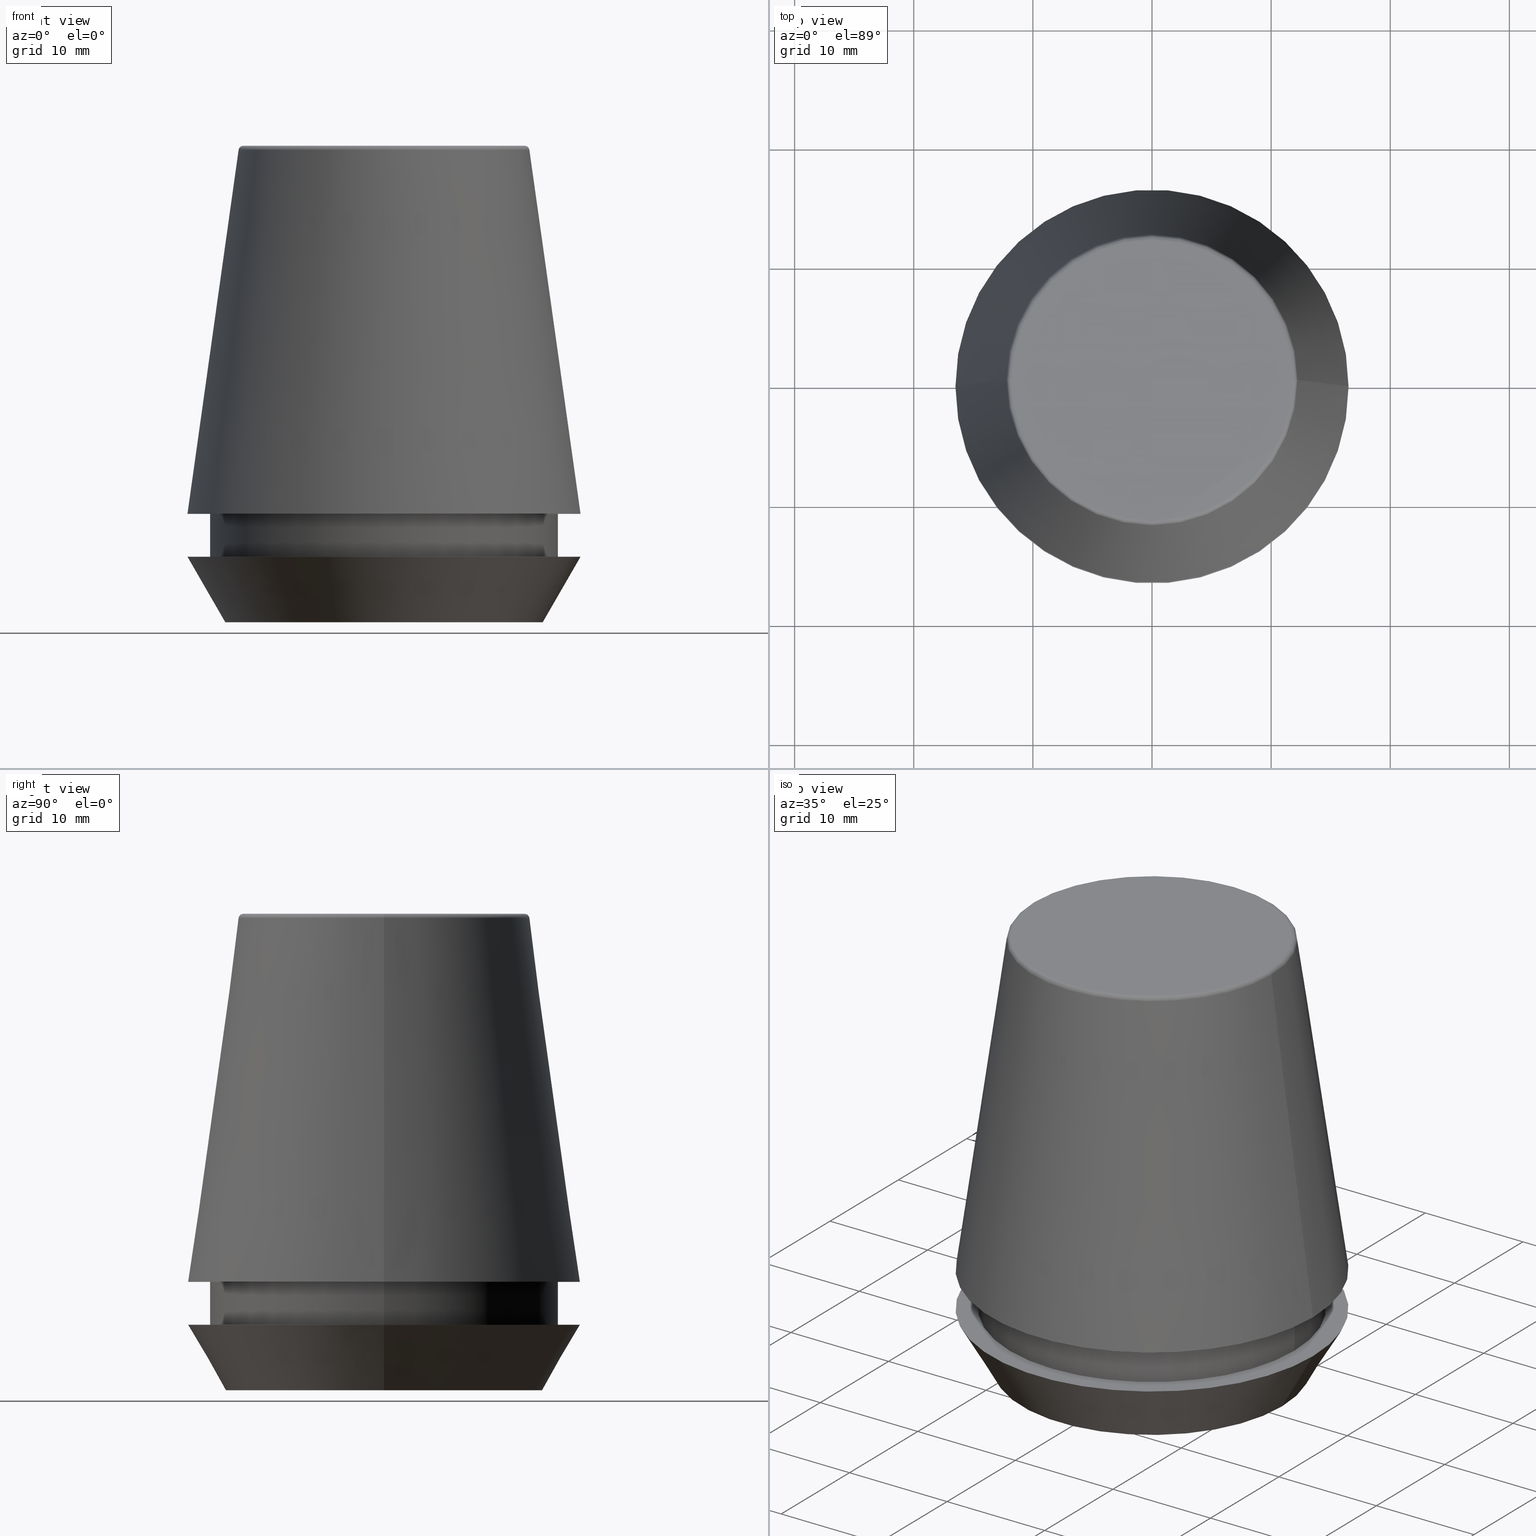
[diagram: canonical four-view strip — front | top / right | iso, engineering-drawing reading convention]
A machine part, canonical four-view strip (front | top / right | iso — engineering-drawing reading convention). The complete STEP part file that produces these views, byte-faithful:
ISO-10303-21;
HEADER;
FILE_DESCRIPTION (( 'STEP AP203' ),
    '1' );
FILE_NAME ('TAP COLLET ER 32G  5.0 X 4.0.STEP',
    '2019-04-09T10:46:45',
    ( '' ),
    ( '' ),
    'SwSTEP 2.0',
    'SolidWorks 2014',
    '' );
FILE_SCHEMA (( 'CONFIG_CONTROL_DESIGN' ));
ENDSEC;

DATA;
#1 = LOCAL_TIME ( 16, 16, 45.00000000000000000, #74 ) ;
#2 = EDGE_CURVE ( 'NONE', #281, #302, #48, .T. ) ;
#3 = CARTESIAN_POINT ( 'NONE',  ( 11.80989888411031400, 0.0000000000000000000, 39.60000000000000100 ) ) ;
#4 = EDGE_CURVE ( 'NONE', #292, #219, #272, .T. ) ;
#5 = VECTOR ( 'NONE', #114, 999.9999999999998900 ) ;
#6 = CARTESIAN_POINT ( 'NONE',  ( 0.0000000000000000000, 0.0000000000000000000, 39.65566924038402900 ) ) ;
#7 = DIRECTION ( 'NONE',  ( 1.000000000000000000, 0.0000000000000000000, 0.0000000000000000000 ) ) ;
#8 = DIRECTION ( 'NONE',  ( 1.000000000000000000, 0.0000000000000000000, 0.0000000000000000000 ) ) ;
#9 = CC_DESIGN_APPROVAL ( #169, ( #26 ) ) ;
#10 = CIRCLE ( 'NONE', #76, 14.60000000000000000 ) ;
#11 = CARTESIAN_POINT ( 'NONE',  ( 0.0000000000000000000, 0.0000000000000000000, 40.00000000000000700 ) ) ;
#12 = CARTESIAN_POINT ( 'NONE',  ( -13.32457351945710200, 1.826228424826902600E-015, 0.0000000000000000000 ) ) ;
#13 = EDGE_LOOP ( 'NONE', ( #22, #373 ) ) ;
#14 = VECTOR ( 'NONE', #386, 1000.000000000000000 ) ;
#15 = ADVANCED_FACE ( 'NONE', ( #122 ), #21, .T. ) ;
#16 = ORIENTED_EDGE ( 'NONE', *, *, #345, .F. ) ;
#17 = CARTESIAN_POINT ( 'NONE',  ( 16.50000000000000000, 0.0000000000000000000, 5.500000000000005300 ) ) ;
#18 = PERSON_AND_ORGANIZATION_ROLE ( 'design_supplier' ) ;
#19 = CARTESIAN_POINT ( 'NONE',  ( 0.0000000000000000000, 0.0000000000000000000, 5.500000000000005300 ) ) ;
#20 = EDGE_CURVE ( 'NONE', #257, #121, #95, .T. ) ;
#21 = CONICAL_SURFACE ( 'NONE', #296, 16.50032537154048700, 0.1396263401595395900 ) ;
#22 = ORIENTED_EDGE ( 'NONE', *, *, #155, .T. ) ;
#23 = DIRECTION ( 'NONE',  ( 1.000000000000000000, 0.0000000000000000000, 0.0000000000000000000 ) ) ;
#24 = FACE_OUTER_BOUND ( 'NONE', #207, .T. ) ;
#25 = LINE ( 'NONE', #88, #266 ) ;
#26 = PRODUCT_DEFINITION_FORMATION_WITH_SPECIFIED_SOURCE ( 'ANY', '', #135, .NOT_KNOWN. ) ;
#27 = DIRECTION ( 'NONE',  ( -0.0000000000000000000, -0.0000000000000000000, 1.000000000000000000 ) ) ;
#28 = CIRCLE ( 'NONE', #231, 12.20600611160694300 ) ;
#29 = EDGE_CURVE ( 'NONE', #351, #325, #173, .T. ) ;
#30 = CIRCLE ( 'NONE', #115, 16.50000000000000000 ) ;
#31 = EDGE_LOOP ( 'NONE', ( #32, #140, #151, #45 ) ) ;
#32 = ORIENTED_EDGE ( 'NONE', *, *, #254, .F. ) ;
#33 = COORDINATED_UNIVERSAL_TIME_OFFSET ( 5, 30, .AHEAD. ) ;
#34 = CLOSED_SHELL ( 'NONE', ( #228, #375, #289, #340, #192, #132, #230, #314, #46, #255, #15, #99 ) ) ;
#35 = CARTESIAN_POINT ( 'NONE',  ( 0.0000000000000000000, 0.0000000000000000000, 39.65566924038402900 ) ) ;
#36 = DIRECTION ( 'NONE',  ( 0.0000000000000000000, -1.000000000000000000, 0.0000000000000000000 ) ) ;
#37 = DIRECTION ( 'NONE',  ( 0.0000000000000000000, -0.0000000000000000000, 1.000000000000000000 ) ) ;
#38 = CONICAL_SURFACE ( 'NONE', #168, 13.32457351945710200, 0.5235987755982927100 ) ;
#39 = DIRECTION ( 'NONE',  ( 1.000000000000000000, 0.0000000000000000000, 0.0000000000000000000 ) ) ;
#40 = CARTESIAN_POINT ( 'NONE',  ( 0.0000000000000000000, 0.0000000000000000000, 5.500000000000005300 ) ) ;
#41 = APPROVAL_PERSON_ORGANIZATION ( #116, #271, #47 ) ;
#42 = ORIENTED_EDGE ( 'NONE', *, *, #104, .T. ) ;
#43 = LOCAL_TIME ( 16, 16, 45.00000000000000000, #127 ) ;
#44 = CC_DESIGN_PERSON_AND_ORGANIZATION_ASSIGNMENT ( #154, #235, ( #229 ) ) ;
#45 = ORIENTED_EDGE ( 'NONE', *, *, #4, .F. ) ;
#46 = ADVANCED_FACE ( 'NONE', ( #336 ), #251, .T. ) ;
#47 = APPROVAL_ROLE ( '' ) ;
#48 = CIRCLE ( 'NONE', #300, 13.32457351945710200 ) ;
#49 = CIRCLE ( 'NONE', #160, 12.20600611160694300 ) ;
#50 = AXIS2_PLACEMENT_3D ( 'NONE', #215, #143, #316 ) ;
#51 = CARTESIAN_POINT ( 'NONE',  ( 0.0000000000000000000, 0.0000000000000000000, 39.60000000000000100 ) ) ;
#52 = AXIS2_PLACEMENT_3D ( 'NONE', #354, #268, #210 ) ;
#53 = CARTESIAN_POINT ( 'NONE',  ( 0.0000000000000000000, 0.0000000000000000000, 5.500000000000005300 ) ) ;
#54 = ORIENTED_EDGE ( 'NONE', *, *, #155, .F. ) ;
#55 = AXIS2_PLACEMENT_3D ( 'NONE', #371, #59, #70 ) ;
#56 = CC_DESIGN_DATE_AND_TIME_ASSIGNMENT ( #277, #198, ( #287 ) ) ;
#57 = ORIENTED_EDGE ( 'NONE', *, *, #225, .F. ) ;
#58 =( NAMED_UNIT ( * ) PLANE_ANGLE_UNIT ( ) SI_UNIT ( $, .RADIAN. ) );
#59 = DIRECTION ( 'NONE',  ( 0.0000000000000000000, 0.0000000000000000000, -1.000000000000000000 ) ) ;
#60 = APPROVAL_DATE_TIME ( #136, #169 ) ;
#61 = AXIS2_PLACEMENT_3D ( 'NONE', #356, #328, #85 ) ;
#62 = CARTESIAN_POINT ( 'NONE',  ( 0.0000000000000000000, 0.0000000000000000000, 9.099999999999997900 ) ) ;
#63 = EDGE_LOOP ( 'NONE', ( #313, #117 ) ) ;
#64 =( GEOMETRIC_REPRESENTATION_CONTEXT ( 3 ) GLOBAL_UNCERTAINTY_ASSIGNED_CONTEXT ( ( #270 ) ) GLOBAL_UNIT_ASSIGNED_CONTEXT ( ( #187, #58, #158 ) ) REPRESENTATION_CONTEXT ( 'NONE', 'WORKASPACE' ) );
#65 = DIRECTION ( 'NONE',  ( 1.000000000000000000, 0.0000000000000000000, 0.0000000000000000000 ) ) ;
#66 = CARTESIAN_POINT ( 'NONE',  ( 0.0000000000000000000, 0.0000000000000000000, 0.0000000000000000000 ) ) ;
#67 = ORIENTED_EDGE ( 'NONE', *, *, #383, .F. ) ;
#68 = APPROVAL_PERSON_ORGANIZATION ( #145, #169, #258 ) ;
#69 = ADVANCED_BREP_SHAPE_REPRESENTATION ( 'TAP COLLET ER 32G  5.0 X 4.0', ( #323, #264 ), #64 ) ;
#70 = DIRECTION ( 'NONE',  ( -1.000000000000000000, 0.0000000000000000000, 0.0000000000000000000 ) ) ;
#71 = EDGE_LOOP ( 'NONE', ( #118, #343, #288, #203 ) ) ;
#72 = CARTESIAN_POINT ( 'NONE',  ( 0.0000000000000000000, 11.80989888411031400, 40.00000000000000700 ) ) ;
#73 = MECHANICAL_CONTEXT ( 'NONE', #150, 'mechanical' ) ;
#74 = COORDINATED_UNIVERSAL_TIME_OFFSET ( 5, 30, .AHEAD. ) ;
#75 = DIRECTION ( 'NONE',  ( 0.0000000000000000000, 0.0000000000000000000, 1.000000000000000000 ) ) ;
#76 = AXIS2_PLACEMENT_3D ( 'NONE', #19, #348, #237 ) ;
#77 = ORIENTED_EDGE ( 'NONE', *, *, #385, .T. ) ;
#78 = LINE ( 'NONE', #146, #5 ) ;
#79 = AXIS2_PLACEMENT_3D ( 'NONE', #53, #110, #360 ) ;
#80 = DIRECTION ( 'NONE',  ( -1.000000000000000000, 0.0000000000000000000, -0.0000000000000000000 ) ) ;
#81 = CARTESIAN_POINT ( 'NONE',  ( -14.60000000000000000, 1.787984326755135800E-015, 101.8074564848000400 ) ) ;
#82 = PLANE ( 'NONE',  #184 ) ;
#83 = CC_DESIGN_PERSON_AND_ORGANIZATION_ASSIGNMENT ( #369, #194, ( #26 ) ) ;
#84 = CIRCLE ( 'NONE', #205, 11.80989888411031400 ) ;
#85 = DIRECTION ( 'NONE',  ( 1.000000000000000000, 0.0000000000000000000, 0.0000000000000000000 ) ) ;
#86 = DIRECTION ( 'NONE',  ( -0.0000000000000000000, -0.0000000000000000000, 1.000000000000000000 ) ) ;
#87 = AXIS2_PLACEMENT_3D ( 'NONE', #112, #253, #159 ) ;
#88 = CARTESIAN_POINT ( 'NONE',  ( 16.50032537154048700, 2.020707065114692300E-015, 9.099999999999997900 ) ) ;
#89 = PLANE ( 'NONE',  #217 ) ;
#90 = FACE_OUTER_BOUND ( 'NONE', #31, .T. ) ;
#91 = EDGE_LOOP ( 'NONE', ( #189, #372 ) ) ;
#92 = DESIGN_CONTEXT ( 'detailed design', #347, 'design' ) ;
#93 = CARTESIAN_POINT ( 'NONE',  ( 0.0000000000000000000, 0.0000000000000000000, 40.00000000000000700 ) ) ;
#94 = CARTESIAN_POINT ( 'NONE',  ( 14.60000000000000000, 0.0000000000000000000, 9.099999999999997900 ) ) ;
#95 = CIRCLE ( 'NONE', #331, 14.60000000000000000 ) ;
#96 = CIRCLE ( 'NONE', #97, 14.60000000000000000 ) ;
#97 = AXIS2_PLACEMENT_3D ( 'NONE', #284, #128, #39 ) ;
#98 = CIRCLE ( 'NONE', #50, 0.4000000000000028000 ) ;
#99 = ADVANCED_FACE ( 'NONE', ( #103 ), #327, .T. ) ;
#100 = APPROVAL_DATE_TIME ( #183, #174 ) ;
#101 = CARTESIAN_POINT ( 'NONE',  ( 0.0000000000000000000, 0.0000000000000000000, 0.0000000000000000000 ) ) ;
#102 = APPROVAL_STATUS ( 'not_yet_approved' ) ;
#103 = FACE_OUTER_BOUND ( 'NONE', #223, .T. ) ;
#104 = EDGE_CURVE ( 'NONE', #302, #281, #260, .T. ) ;
#105 = CIRCLE ( 'NONE', #138, 16.50032537154048700 ) ;
#106 = ORIENTED_EDGE ( 'NONE', *, *, #2, .T. ) ;
#107 = AXIS2_PLACEMENT_3D ( 'NONE', #221, #334, #171 ) ;
#108 = DATE_AND_TIME ( #195, #275 ) ;
#109 = ORIENTED_EDGE ( 'NONE', *, *, #349, .F. ) ;
#110 = DIRECTION ( 'NONE',  ( -0.0000000000000000000, -0.0000000000000000000, 1.000000000000000000 ) ) ;
#111 = APPROVAL_PERSON_ORGANIZATION ( #197, #174, #166 ) ;
#112 = CARTESIAN_POINT ( 'NONE',  ( 0.0000000000000000000, 16.50000000000000000, 5.500000000000002700 ) ) ;
#113 = FACE_OUTER_BOUND ( 'NONE', #177, .T. ) ;
#114 = DIRECTION ( 'NONE',  ( 0.4999999999999947300, 0.0000000000000000000, 0.8660254037844418200 ) ) ;
#115 = AXIS2_PLACEMENT_3D ( 'NONE', #40, #285, #312 ) ;
#116 = PERSON_AND_ORGANIZATION ( #298, #315 ) ;
#117 = ORIENTED_EDGE ( 'NONE', *, *, #304, .T. ) ;
#118 = ORIENTED_EDGE ( 'NONE', *, *, #326, .T. ) ;
#119 = CC_DESIGN_APPROVAL ( #174, ( #287 ) ) ;
#120 = PLANE ( 'NONE',  #144 ) ;
#121 = VERTEX_POINT ( 'NONE', #94 ) ;
#122 = FACE_OUTER_BOUND ( 'NONE', #142, .T. ) ;
#123 = DIRECTION ( 'NONE',  ( 1.000000000000000000, 0.0000000000000000000, 0.0000000000000000000 ) ) ;
#124 = FACE_BOUND ( 'NONE', #91, .T. ) ;
#125 = DIRECTION ( 'NONE',  ( 1.000000000000000000, 0.0000000000000000000, 0.0000000000000000000 ) ) ;
#126 = DIRECTION ( 'NONE',  ( 1.000000000000000000, 0.0000000000000000000, 0.0000000000000000000 ) ) ;
#127 = COORDINATED_UNIVERSAL_TIME_OFFSET ( 5, 30, .AHEAD. ) ;
#128 = DIRECTION ( 'NONE',  ( -0.0000000000000000000, -0.0000000000000000000, 1.000000000000000000 ) ) ;
#129 = AXIS2_PLACEMENT_3D ( 'NONE', #245, #86, #147 ) ;
#130 = CARTESIAN_POINT ( 'NONE',  ( 0.0000000000000000000, 0.0000000000000000000, 0.0000000000000000000 ) ) ;
#131 = ORIENTED_EDGE ( 'NONE', *, *, #367, .T. ) ;
#132 = ADVANCED_FACE ( 'NONE', ( #167 ), #89, .F. ) ;
#133 = EDGE_LOOP ( 'NONE', ( #303, #318, #131, #134 ) ) ;
#134 = ORIENTED_EDGE ( 'NONE', *, *, #20, .F. ) ;
#135 = PRODUCT ( 'TAP COLLET ER 32G  5.0 X 4.0', 'TAP COLLET ER 32G  5.0 X 4.0', '', ( #73 ) ) ;
#136 = DATE_AND_TIME ( #226, #306 ) ;
#137 = CARTESIAN_POINT ( 'NONE',  ( 0.0000000000000000000, 0.0000000000000000000, 9.099999999999997900 ) ) ;
#138 = AXIS2_PLACEMENT_3D ( 'NONE', #137, #185, #8 ) ;
#139 = EDGE_CURVE ( 'NONE', #211, #199, #10, .T. ) ;
#140 = ORIENTED_EDGE ( 'NONE', *, *, #349, .T. ) ;
#141 = ORIENTED_EDGE ( 'NONE', *, *, #364, .F. ) ;
#142 = EDGE_LOOP ( 'NONE', ( #109, #57, #341, #232 ) ) ;
#143 = DIRECTION ( 'NONE',  ( 1.224646799147353200E-016, 1.000000000000000000, 0.0000000000000000000 ) ) ;
#144 = AXIS2_PLACEMENT_3D ( 'NONE', #248, #357, #295 ) ;
#145 = PERSON_AND_ORGANIZATION ( #298, #315 ) ;
#146 = CARTESIAN_POINT ( 'NONE',  ( 13.32457351945710200, 0.0000000000000000000, 0.0000000000000000000 ) ) ;
#147 = DIRECTION ( 'NONE',  ( 1.000000000000000000, 0.0000000000000000000, 0.0000000000000000000 ) ) ;
#148 = AXIS2_PLACEMENT_3D ( 'NONE', #3, #36, #181 ) ;
#149 = CARTESIAN_POINT ( 'NONE',  ( 0.0000000000000000000, 0.0000000000000000000, 101.8074564848000400 ) ) ;
#150 = APPLICATION_CONTEXT ( 'configuration controlled 3d designs of mechanical parts and assemblies' ) ;
#151 = ORIENTED_EDGE ( 'NONE', *, *, #364, .T. ) ;
#152 = ORIENTED_EDGE ( 'NONE', *, *, #139, .F. ) ;
#153 = DIRECTION ( 'NONE',  ( -0.0000000000000000000, -0.0000000000000000000, 1.000000000000000000 ) ) ;
#154 = PERSON_AND_ORGANIZATION ( #298, #315 ) ;
#155 = EDGE_CURVE ( 'NONE', #325, #351, #84, .T. ) ;
#156 = CIRCLE ( 'NONE', #79, 14.60000000000000000 ) ;
#157 = CARTESIAN_POINT ( 'NONE',  ( 0.0000000000000000000, 0.0000000000000000000, 0.0000000000000000000 ) ) ;
#158 =( NAMED_UNIT ( * ) SI_UNIT ( $, .STERADIAN. ) SOLID_ANGLE_UNIT ( ) );
#159 = DIRECTION ( 'NONE',  ( -1.000000000000000000, 0.0000000000000000000, -0.0000000000000000000 ) ) ;
#160 = AXIS2_PLACEMENT_3D ( 'NONE', #35, #363, #220 ) ;
#161 = DIRECTION ( 'NONE',  ( -1.000000000000000000, 0.0000000000000000000, 0.0000000000000000000 ) ) ;
#162 = SHAPE_DEFINITION_REPRESENTATION ( #317, #69 ) ;
#163 = DIRECTION ( 'NONE',  ( -0.1391731009600586900, 0.0000000000000000000, -0.9902680687415712500 ) ) ;
#164 = EDGE_LOOP ( 'NONE', ( #196, #152 ) ) ;
#165 = AXIS2_PLACEMENT_3D ( 'NONE', #51, #27, #7 ) ;
#166 = APPROVAL_ROLE ( '' ) ;
#167 = FACE_OUTER_BOUND ( 'NONE', #319, .T. ) ;
#168 = AXIS2_PLACEMENT_3D ( 'NONE', #157, #309, #65 ) ;
#169 = APPROVAL ( #102, 'UNSPECIFIED' ) ;
#170 = VECTOR ( 'NONE', #387, 1000.000000000000000 ) ;
#171 = DIRECTION ( 'NONE',  ( 1.000000000000000000, 0.0000000000000000000, 0.0000000000000000000 ) ) ;
#172 = CARTESIAN_POINT ( 'NONE',  ( 14.60000000000000000, 0.0000000000000000000, 101.8074564848000400 ) ) ;
#173 = CIRCLE ( 'NONE', #241, 11.80989888411031400 ) ;
#174 = APPROVAL ( #346, 'UNSPECIFIED' ) ;
#175 = CYLINDRICAL_SURFACE ( 'NONE', #107, 14.60000000000000000 ) ;
#176 = CARTESIAN_POINT ( 'NONE',  ( 16.50032537154048700, 2.020707065114692300E-015, 9.099999999999997900 ) ) ;
#177 = EDGE_LOOP ( 'NONE', ( #308, #141 ) ) ;
#178 = CC_DESIGN_DATE_AND_TIME_ASSIGNMENT ( #236, #293, ( #229 ) ) ;
#179 = CIRCLE ( 'NONE', #52, 16.50032537154048700 ) ;
#180 = PERSON_AND_ORGANIZATION_ROLE ( 'design_owner' ) ;
#181 = DIRECTION ( 'NONE',  ( 0.0000000000000000000, 0.0000000000000000000, -1.000000000000000000 ) ) ;
#182 = CARTESIAN_POINT ( 'NONE',  ( -11.80989888411031400, 1.470550059081603400E-015, 40.00000000000000700 ) ) ;
#183 = DATE_AND_TIME ( #267, #342 ) ;
#184 = AXIS2_PLACEMENT_3D ( 'NONE', #72, #259, #80 ) ;
#185 = DIRECTION ( 'NONE',  ( -0.0000000000000000000, -0.0000000000000000000, 1.000000000000000000 ) ) ;
#186 = VECTOR ( 'NONE', #163, 1000.000000000000000 ) ;
#187 =( LENGTH_UNIT ( ) NAMED_UNIT ( * ) SI_UNIT ( .MILLI., .METRE. ) );
#188 = CIRCLE ( 'NONE', #148, 0.4000000000000045200 ) ;
#189 = ORIENTED_EDGE ( 'NONE', *, *, #324, .T. ) ;
#190 = DIRECTION ( 'NONE',  ( -0.0000000000000000000, -0.0000000000000000000, 1.000000000000000000 ) ) ;
#191 = ORIENTED_EDGE ( 'NONE', *, *, #225, .T. ) ;
#192 = ADVANCED_FACE ( 'NONE', ( #322 ), #82, .F. ) ;
#193 = CC_DESIGN_PERSON_AND_ORGANIZATION_ASSIGNMENT ( #206, #180, ( #135 ) ) ;
#194 = PERSON_AND_ORGANIZATION_ROLE ( 'creator' ) ;
#195 = CALENDAR_DATE ( 2019, 9, 4 ) ;
#196 = ORIENTED_EDGE ( 'NONE', *, *, #326, .F. ) ;
#197 = PERSON_AND_ORGANIZATION ( #298, #315 ) ;
#198 = DATE_TIME_ROLE ( 'classification_date' ) ;
#199 = VERTEX_POINT ( 'NONE', #204 ) ;
#200 = DIRECTION ( 'NONE',  ( 1.000000000000000000, 0.0000000000000000000, 0.0000000000000000000 ) ) ;
#201 = LINE ( 'NONE', #278, #282 ) ;
#202 = CC_DESIGN_APPROVAL ( #271, ( #229 ) ) ;
#203 = ORIENTED_EDGE ( 'NONE', *, *, #367, .F. ) ;
#204 = CARTESIAN_POINT ( 'NONE',  ( 14.60000000000000000, 0.0000000000000000000, 5.500000000000005300 ) ) ;
#205 = AXIS2_PLACEMENT_3D ( 'NONE', #93, #153, #252 ) ;
#206 = PERSON_AND_ORGANIZATION ( #298, #315 ) ;
#207 = EDGE_LOOP ( 'NONE', ( #106, #276, #67, #265 ) ) ;
#208 = ORIENTED_EDGE ( 'NONE', *, *, #2, .F. ) ;
#209 = CC_DESIGN_PERSON_AND_ORGANIZATION_ASSIGNMENT ( #214, #378, ( #287 ) ) ;
#210 = DIRECTION ( 'NONE',  ( 1.000000000000000000, 0.0000000000000000000, 0.0000000000000000000 ) ) ;
#211 = VERTEX_POINT ( 'NONE', #359 ) ;
#212 = CARTESIAN_POINT ( 'NONE',  ( 12.20600611160694300, 1.757755848304969800E-015, 39.65566924038402900 ) ) ;
#213 = CARTESIAN_POINT ( 'NONE',  ( -16.50032537154048700, 0.0000000000000000000, 9.099999999999997900 ) ) ;
#214 = PERSON_AND_ORGANIZATION ( #298, #315 ) ;
#215 = CARTESIAN_POINT ( 'NONE',  ( -11.80989888411031400, 1.446295486667959300E-015, 39.60000000000000100 ) ) ;
#216 = DIRECTION ( 'NONE',  ( 1.000000000000000000, 0.0000000000000000000, 0.0000000000000000000 ) ) ;
#217 = AXIS2_PLACEMENT_3D ( 'NONE', #66, #37, #125 ) ;
#218 = ORIENTED_EDGE ( 'NONE', *, *, #29, .F. ) ;
#219 = VERTEX_POINT ( 'NONE', #329 ) ;
#220 = DIRECTION ( 'NONE',  ( 1.000000000000000000, 0.0000000000000000000, 0.0000000000000000000 ) ) ;
#221 = CARTESIAN_POINT ( 'NONE',  ( 0.0000000000000000000, 0.0000000000000000000, 101.8074564848000400 ) ) ;
#222 = ORIENTED_EDGE ( 'NONE', *, *, #280, .T. ) ;
#223 = EDGE_LOOP ( 'NONE', ( #16, #191, #222, #218 ) ) ;
#224 = AXIS2_PLACEMENT_3D ( 'NONE', #149, #190, #126 ) ;
#225 = EDGE_CURVE ( 'NONE', #292, #362, #28, .T. ) ;
#226 = CALENDAR_DATE ( 2019, 9, 4 ) ;
#227 = DIRECTION ( 'NONE',  ( 1.000000000000000000, 0.0000000000000000000, 0.0000000000000000000 ) ) ;
#228 = ADVANCED_FACE ( 'NONE', ( #243 ), #239, .T. ) ;
#229 = PRODUCT_DEFINITION ( 'UNKNOWN', '', #26, #92 ) ;
#230 = ADVANCED_FACE ( 'NONE', ( #355 ), #38, .T. ) ;
#231 = AXIS2_PLACEMENT_3D ( 'NONE', #6, #294, #216 ) ;
#232 = ORIENTED_EDGE ( 'NONE', *, *, #283, .T. ) ;
#233 = SECURITY_CLASSIFICATION_LEVEL ( 'unclassified' ) ;
#234 = ORIENTED_EDGE ( 'NONE', *, *, #104, .F. ) ;
#235 = PERSON_AND_ORGANIZATION_ROLE ( 'creator' ) ;
#236 = DATE_AND_TIME ( #310, #1 ) ;
#237 = DIRECTION ( 'NONE',  ( 1.000000000000000000, 0.0000000000000000000, 0.0000000000000000000 ) ) ;
#238 = AXIS2_PLACEMENT_3D ( 'NONE', #101, #269, #200 ) ;
#239 = TOROIDAL_SURFACE ( 'NONE', #165, 11.80989888411031400, 0.4000000000000026900 ) ;
#240 = CONICAL_SURFACE ( 'NONE', #55, 16.50032537154048700, 0.1396263401595395900 ) ;
#241 = AXIS2_PLACEMENT_3D ( 'NONE', #11, #263, #23 ) ;
#242 = APPROVAL_DATE_TIME ( #108, #271 ) ;
#243 = FACE_OUTER_BOUND ( 'NONE', #366, .T. ) ;
#244 = EDGE_CURVE ( 'NONE', #302, #377, #201, .T. ) ;
#245 = CARTESIAN_POINT ( 'NONE',  ( 0.0000000000000000000, 0.0000000000000000000, 0.0000000000000000000 ) ) ;
#246 = ORIENTED_EDGE ( 'NONE', *, *, #244, .F. ) ;
#247 = CIRCLE ( 'NONE', #61, 16.50000000000000000 ) ;
#248 = CARTESIAN_POINT ( 'NONE',  ( 0.0000000000000000000, 16.50032537154048700, 9.099999999999999600 ) ) ;
#249 = CARTESIAN_POINT ( 'NONE',  ( 0.0000000000000000000, 0.0000000000000000000, 39.60000000000000100 ) ) ;
#250 = DIRECTION ( 'NONE',  ( -0.0000000000000000000, -0.0000000000000000000, 1.000000000000000000 ) ) ;
#251 = CYLINDRICAL_SURFACE ( 'NONE', #224, 14.60000000000000000 ) ;
#252 = DIRECTION ( 'NONE',  ( 1.000000000000000000, 0.0000000000000000000, 0.0000000000000000000 ) ) ;
#253 = DIRECTION ( 'NONE',  ( 0.0000000000000000000, 0.0000000000000000000, -1.000000000000000000 ) ) ;
#254 = EDGE_CURVE ( 'NONE', #362, #292, #49, .T. ) ;
#255 = ADVANCED_FACE ( 'NONE', ( #113, #124 ), #120, .F. ) ;
#256 = LINE ( 'NONE', #81, #14 ) ;
#257 = VERTEX_POINT ( 'NONE', #353 ) ;
#258 = APPROVAL_ROLE ( '' ) ;
#259 = DIRECTION ( 'NONE',  ( 0.0000000000000000000, 0.0000000000000000000, -1.000000000000000000 ) ) ;
#260 = CIRCLE ( 'NONE', #238, 13.32457351945710200 ) ;
#261 = DIRECTION ( 'NONE',  ( -0.0000000000000000000, -0.0000000000000000000, 1.000000000000000000 ) ) ;
#262 = FACE_OUTER_BOUND ( 'NONE', #63, .T. ) ;
#263 = DIRECTION ( 'NONE',  ( -0.0000000000000000000, -0.0000000000000000000, 1.000000000000000000 ) ) ;
#264 = AXIS2_PLACEMENT_3D ( 'NONE', #130, #75, #382 ) ;
#265 = ORIENTED_EDGE ( 'NONE', *, *, #385, .F. ) ;
#266 = VECTOR ( 'NONE', #358, 1000.000000000000000 ) ;
#267 = CALENDAR_DATE ( 2019, 9, 4 ) ;
#268 = DIRECTION ( 'NONE',  ( -0.0000000000000000000, -0.0000000000000000000, 1.000000000000000000 ) ) ;
#269 = DIRECTION ( 'NONE',  ( -0.0000000000000000000, -0.0000000000000000000, 1.000000000000000000 ) ) ;
#270 = UNCERTAINTY_MEASURE_WITH_UNIT (LENGTH_MEASURE( 1.000000000000000100E-005 ), #187, 'distance_accuracy_value', 'NONE');
#271 = APPROVAL ( #320, 'UNSPECIFIED' ) ;
#272 = LINE ( 'NONE', #213, #186 ) ;
#273 = PLANE ( 'NONE',  #87 ) ;
#274 = FACE_OUTER_BOUND ( 'NONE', #71, .T. ) ;
#275 = LOCAL_TIME ( 16, 16, 45.00000000000000000, #350 ) ;
#276 = ORIENTED_EDGE ( 'NONE', *, *, #244, .T. ) ;
#277 = DATE_AND_TIME ( #352, #43 ) ;
#278 = CARTESIAN_POINT ( 'NONE',  ( -13.32457351945710200, 1.631789631060672300E-015, 0.0000000000000000000 ) ) ;
#279 = DIRECTION ( 'NONE',  ( -0.4999999999999947300, 6.123233995736700700E-017, 0.8660254037844418200 ) ) ;
#280 = EDGE_CURVE ( 'NONE', #362, #325, #188, .T. ) ;
#281 = VERTEX_POINT ( 'NONE', #332 ) ;
#282 = VECTOR ( 'NONE', #279, 999.9999999999998900 ) ;
#283 = EDGE_CURVE ( 'NONE', #219, #361, #105, .T. ) ;
#284 = CARTESIAN_POINT ( 'NONE',  ( 0.0000000000000000000, 0.0000000000000000000, 9.099999999999997900 ) ) ;
#285 = DIRECTION ( 'NONE',  ( -0.0000000000000000000, -0.0000000000000000000, 1.000000000000000000 ) ) ;
#286 = VERTEX_POINT ( 'NONE', #17 ) ;
#287 = SECURITY_CLASSIFICATION ( '', '', #233 ) ;
#288 = ORIENTED_EDGE ( 'NONE', *, *, #324, .F. ) ;
#289 = ADVANCED_FACE ( 'NONE', ( #274 ), #175, .T. ) ;
#290 = DIRECTION ( 'NONE',  ( -0.0000000000000000000, -0.0000000000000000000, 1.000000000000000000 ) ) ;
#291 = PRODUCT_RELATED_PRODUCT_CATEGORY ( 'detail', '', ( #135 ) ) ;
#292 = VERTEX_POINT ( 'NONE', #307 ) ;
#293 = DATE_TIME_ROLE ( 'creation_date' ) ;
#294 = DIRECTION ( 'NONE',  ( -0.0000000000000000000, -0.0000000000000000000, 1.000000000000000000 ) ) ;
#295 = DIRECTION ( 'NONE',  ( 1.000000000000000000, 0.0000000000000000000, 0.0000000000000000000 ) ) ;
#296 = AXIS2_PLACEMENT_3D ( 'NONE', #62, #321, #161 ) ;
#297 = PERSON_AND_ORGANIZATION ( #298, #315 ) ;
#298 = PERSON ( 'UNSPECIFIED', 'UNSPECIFIED', 'UNSPECIFIED', ('UNSPECIFIED'), ('UNSPECIFIED'), ('UNSPECIFIED') ) ;
#299 = ORIENTED_EDGE ( 'NONE', *, *, #304, .F. ) ;
#300 = AXIS2_PLACEMENT_3D ( 'NONE', #333, #250, #123 ) ;
#301 = ORIENTED_EDGE ( 'NONE', *, *, #280, .F. ) ;
#302 = VERTEX_POINT ( 'NONE', #12 ) ;
#303 = ORIENTED_EDGE ( 'NONE', *, *, #370, .F. ) ;
#304 = EDGE_CURVE ( 'NONE', #377, #286, #30, .T. ) ;
#305 = CARTESIAN_POINT ( 'NONE',  ( -16.50000000000000000, 2.020667218593133100E-015, 5.500000000000005300 ) ) ;
#306 = LOCAL_TIME ( 16, 16, 45.00000000000000000, #381 ) ;
#307 = CARTESIAN_POINT ( 'NONE',  ( -12.20600611160694300, 0.0000000000000000000, 39.65566924038402900 ) ) ;
#308 = ORIENTED_EDGE ( 'NONE', *, *, #283, .F. ) ;
#309 = DIRECTION ( 'NONE',  ( -0.0000000000000000000, -0.0000000000000000000, 1.000000000000000000 ) ) ;
#310 = CALENDAR_DATE ( 2019, 9, 4 ) ;
#311 = CARTESIAN_POINT ( 'NONE',  ( 11.80989888411031400, 0.0000000000000000000, 40.00000000000000700 ) ) ;
#312 = DIRECTION ( 'NONE',  ( 1.000000000000000000, 0.0000000000000000000, 0.0000000000000000000 ) ) ;
#313 = ORIENTED_EDGE ( 'NONE', *, *, #383, .T. ) ;
#314 = ADVANCED_FACE ( 'NONE', ( #337, #262 ), #273, .F. ) ;
#315 = ORGANIZATION ( 'UNSPECIFIED', 'UNSPECIFIED', '' ) ;
#316 = DIRECTION ( 'NONE',  ( -1.000000000000000000, 1.224646799147352500E-016, 0.0000000000000000000 ) ) ;
#317 = PRODUCT_DEFINITION_SHAPE ( 'NONE', 'NONE',  #229 ) ;
#318 = ORIENTED_EDGE ( 'NONE', *, *, #139, .T. ) ;
#319 = EDGE_LOOP ( 'NONE', ( #208, #234 ) ) ;
#320 = APPROVAL_STATUS ( 'not_yet_approved' ) ;
#321 = DIRECTION ( 'NONE',  ( 0.0000000000000000000, 0.0000000000000000000, -1.000000000000000000 ) ) ;
#322 = FACE_OUTER_BOUND ( 'NONE', #13, .T. ) ;
#323 = MANIFOLD_SOLID_BREP ( 'Revolve1', #34 ) ;
#324 = EDGE_CURVE ( 'NONE', #121, #257, #96, .T. ) ;
#325 = VERTEX_POINT ( 'NONE', #311 ) ;
#326 = EDGE_CURVE ( 'NONE', #199, #211, #156, .T. ) ;
#327 = TOROIDAL_SURFACE ( 'NONE', #335, 11.80989888411031400, 0.4000000000000026900 ) ;
#328 = DIRECTION ( 'NONE',  ( -0.0000000000000000000, -0.0000000000000000000, 1.000000000000000000 ) ) ;
#329 = CARTESIAN_POINT ( 'NONE',  ( -16.50032537154048700, 0.0000000000000000000, 9.099999999999997900 ) ) ;
#330 = CONICAL_SURFACE ( 'NONE', #129, 13.32457351945710200, 0.5235987755982927100 ) ;
#331 = AXIS2_PLACEMENT_3D ( 'NONE', #368, #290, #338 ) ;
#332 = CARTESIAN_POINT ( 'NONE',  ( 13.32457351945710200, 0.0000000000000000000, 0.0000000000000000000 ) ) ;
#333 = CARTESIAN_POINT ( 'NONE',  ( 0.0000000000000000000, 0.0000000000000000000, 0.0000000000000000000 ) ) ;
#334 = DIRECTION ( 'NONE',  ( -0.0000000000000000000, -0.0000000000000000000, 1.000000000000000000 ) ) ;
#335 = AXIS2_PLACEMENT_3D ( 'NONE', #249, #261, #227 ) ;
#336 = FACE_OUTER_BOUND ( 'NONE', #133, .T. ) ;
#337 = FACE_BOUND ( 'NONE', #164, .T. ) ;
#338 = DIRECTION ( 'NONE',  ( 1.000000000000000000, 0.0000000000000000000, 0.0000000000000000000 ) ) ;
#339 = LINE ( 'NONE', #172, #170 ) ;
#340 = ADVANCED_FACE ( 'NONE', ( #24 ), #330, .T. ) ;
#341 = ORIENTED_EDGE ( 'NONE', *, *, #4, .T. ) ;
#342 = LOCAL_TIME ( 16, 16, 45.00000000000000000, #33 ) ;
#343 = ORIENTED_EDGE ( 'NONE', *, *, #370, .T. ) ;
#344 = APPLICATION_PROTOCOL_DEFINITION ( 'international standard', 'config_control_design', 1994, #150 ) ;
#345 = EDGE_CURVE ( 'NONE', #292, #351, #98, .T. ) ;
#346 = APPROVAL_STATUS ( 'not_yet_approved' ) ;
#347 = APPLICATION_CONTEXT ( 'configuration controlled 3d designs of mechanical parts and assemblies' ) ;
#348 = DIRECTION ( 'NONE',  ( -0.0000000000000000000, -0.0000000000000000000, 1.000000000000000000 ) ) ;
#349 = EDGE_CURVE ( 'NONE', #362, #361, #25, .T. ) ;
#350 = COORDINATED_UNIVERSAL_TIME_OFFSET ( 5, 30, .AHEAD. ) ;
#351 = VERTEX_POINT ( 'NONE', #182 ) ;
#352 = CALENDAR_DATE ( 2019, 9, 4 ) ;
#353 = CARTESIAN_POINT ( 'NONE',  ( -14.60000000000000000, 1.787984326755135800E-015, 9.099999999999997900 ) ) ;
#354 = CARTESIAN_POINT ( 'NONE',  ( 0.0000000000000000000, 0.0000000000000000000, 9.099999999999997900 ) ) ;
#355 = FACE_OUTER_BOUND ( 'NONE', #376, .T. ) ;
#356 = CARTESIAN_POINT ( 'NONE',  ( 0.0000000000000000000, 0.0000000000000000000, 5.500000000000005300 ) ) ;
#357 = DIRECTION ( 'NONE',  ( 0.0000000000000000000, -0.0000000000000000000, 1.000000000000000000 ) ) ;
#358 = DIRECTION ( 'NONE',  ( 0.1391731009600586900, 1.704378926181473100E-017, -0.9902680687415712500 ) ) ;
#359 = CARTESIAN_POINT ( 'NONE',  ( -14.60000000000000000, 1.787984326755135800E-015, 5.500000000000005300 ) ) ;
#360 = DIRECTION ( 'NONE',  ( 1.000000000000000000, 0.0000000000000000000, 0.0000000000000000000 ) ) ;
#361 = VERTEX_POINT ( 'NONE', #176 ) ;
#362 = VERTEX_POINT ( 'NONE', #212 ) ;
#363 = DIRECTION ( 'NONE',  ( -0.0000000000000000000, -0.0000000000000000000, 1.000000000000000000 ) ) ;
#364 = EDGE_CURVE ( 'NONE', #361, #219, #179, .T. ) ;
#365 = ORIENTED_EDGE ( 'NONE', *, *, #254, .T. ) ;
#366 = EDGE_LOOP ( 'NONE', ( #365, #384, #54, #301 ) ) ;
#367 = EDGE_CURVE ( 'NONE', #199, #121, #339, .T. ) ;
#368 = CARTESIAN_POINT ( 'NONE',  ( 0.0000000000000000000, 0.0000000000000000000, 9.099999999999997900 ) ) ;
#369 = PERSON_AND_ORGANIZATION ( #298, #315 ) ;
#370 = EDGE_CURVE ( 'NONE', #211, #257, #256, .T. ) ;
#371 = CARTESIAN_POINT ( 'NONE',  ( 0.0000000000000000000, 0.0000000000000000000, 9.099999999999997900 ) ) ;
#372 = ORIENTED_EDGE ( 'NONE', *, *, #20, .T. ) ;
#373 = ORIENTED_EDGE ( 'NONE', *, *, #29, .T. ) ;
#374 = CC_DESIGN_SECURITY_CLASSIFICATION ( #287, ( #26 ) ) ;
#375 = ADVANCED_FACE ( 'NONE', ( #90 ), #240, .T. ) ;
#376 = EDGE_LOOP ( 'NONE', ( #246, #42, #77, #299 ) ) ;
#377 = VERTEX_POINT ( 'NONE', #305 ) ;
#378 = PERSON_AND_ORGANIZATION_ROLE ( 'classification_officer' ) ;
#379 = APPLICATION_PROTOCOL_DEFINITION ( 'international standard', 'config_control_design', 1994, #347 ) ;
#380 = CC_DESIGN_PERSON_AND_ORGANIZATION_ASSIGNMENT ( #297, #18, ( #26 ) ) ;
#381 = COORDINATED_UNIVERSAL_TIME_OFFSET ( 5, 30, .AHEAD. ) ;
#382 = DIRECTION ( 'NONE',  ( 1.000000000000000000, 0.0000000000000000000, 0.0000000000000000000 ) ) ;
#383 = EDGE_CURVE ( 'NONE', #286, #377, #247, .T. ) ;
#384 = ORIENTED_EDGE ( 'NONE', *, *, #345, .T. ) ;
#385 = EDGE_CURVE ( 'NONE', #281, #286, #78, .T. ) ;
#386 = DIRECTION ( 'NONE',  ( -0.0000000000000000000, -0.0000000000000000000, 1.000000000000000000 ) ) ;
#387 = DIRECTION ( 'NONE',  ( -0.0000000000000000000, -0.0000000000000000000, 1.000000000000000000 ) ) ;
ENDSEC;
END-ISO-10303-21;
